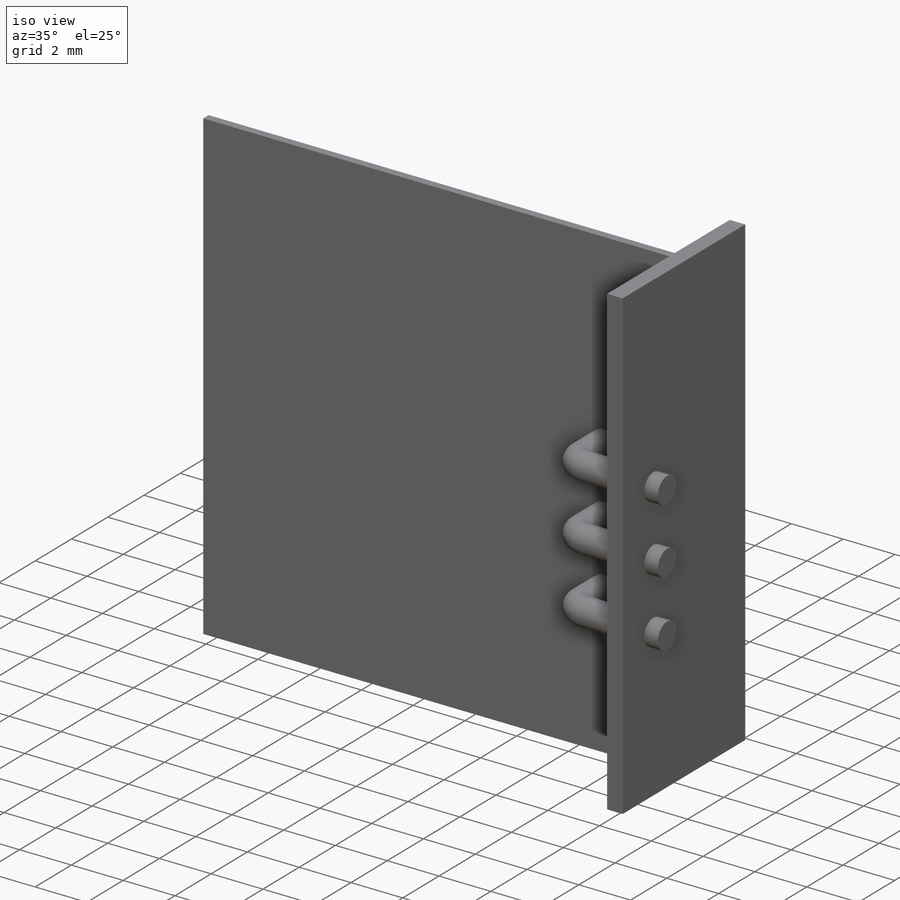
[diagram: iso view]
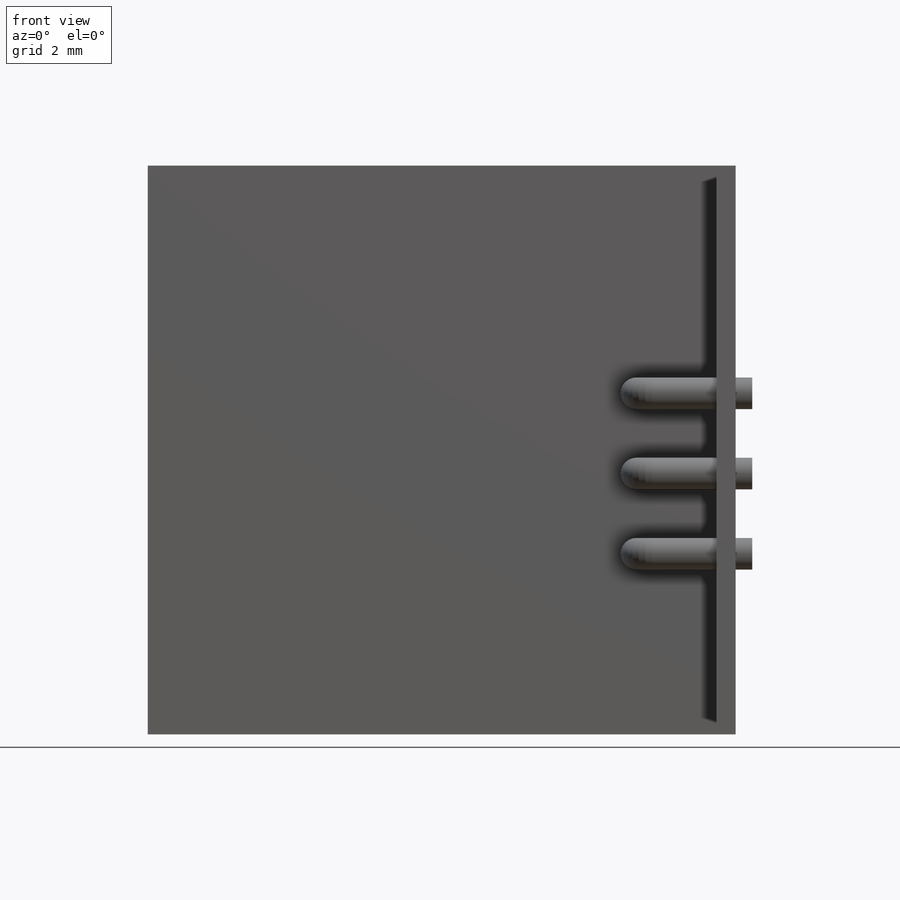
[diagram: front view]
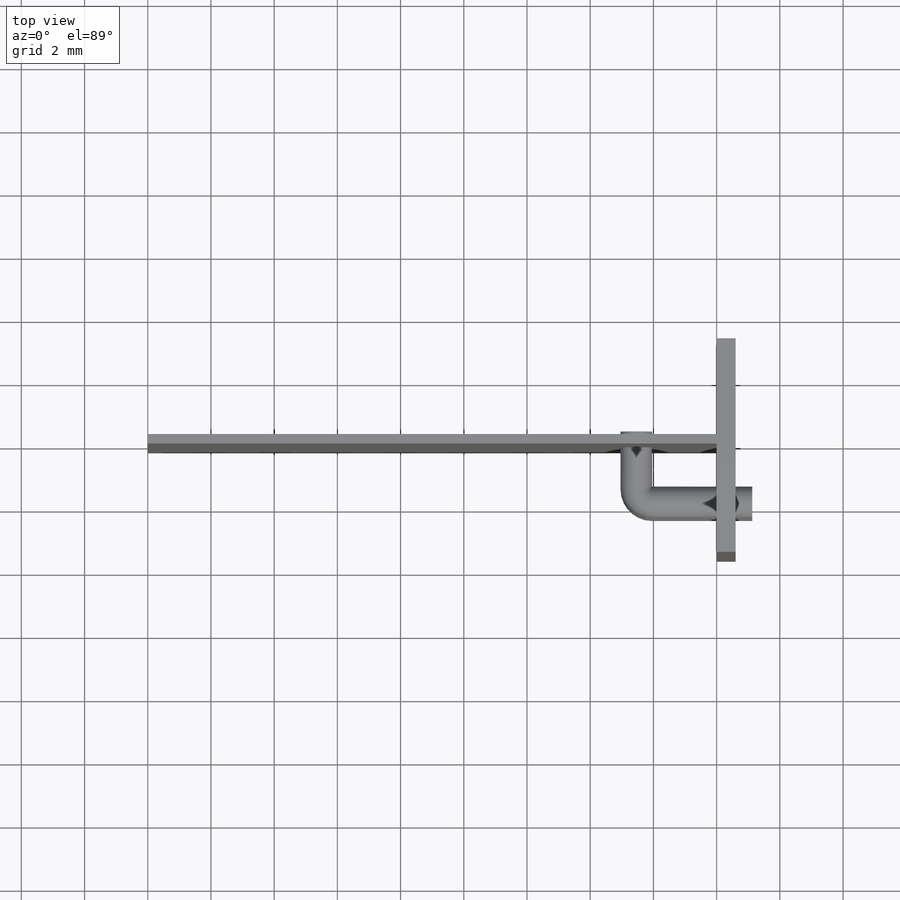
[diagram: top view]
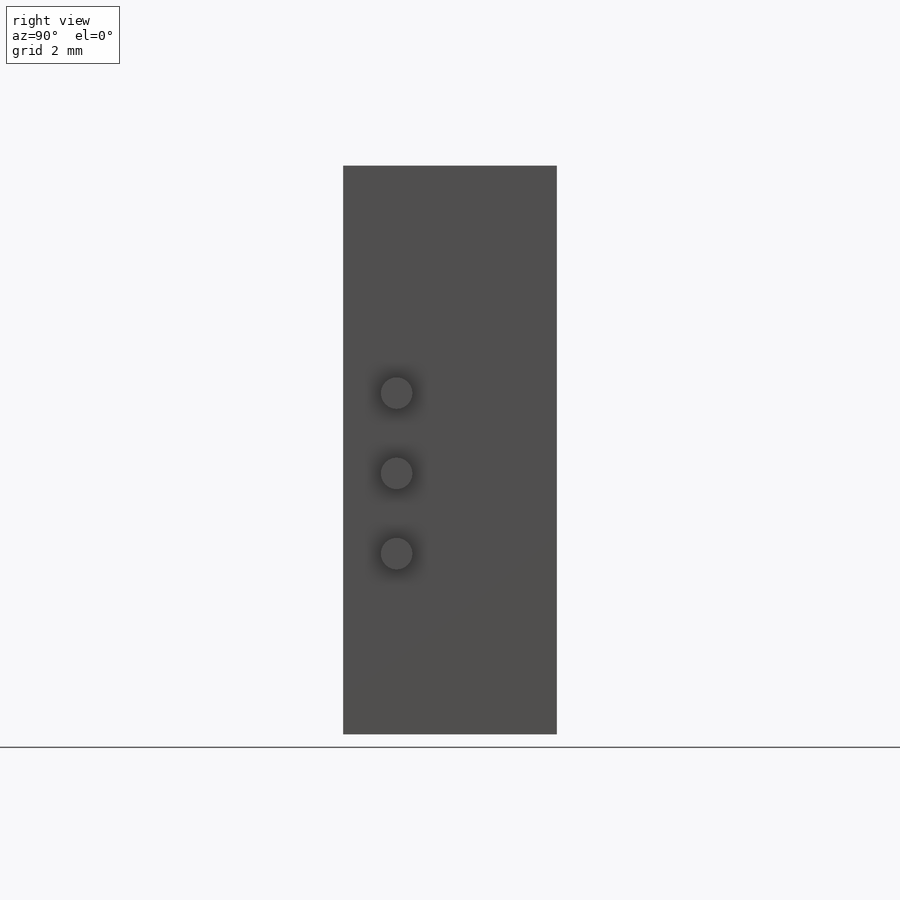
[diagram: right view]
SOLIDWORKS PART (.sldprt)
format: sldprt  version: not decoded by parser v0  size: 298,496 bytes
history: native  units: mm
features: sketch x5, extrude x3, material x1, plane x1, sweep x1, pattern_linear x1 (+15 scaffold rows collapsed)
feature tree (27):
  scaffold x15  (default folders/planes/origin — collapsed)
  material  "Material <not specified>"
  sketch  "Sketch1"  dims[D1=18.0mm D2=18.0mm]
  extrude  "Extrude1"  Depth=0.3mm
  sketch  "Sketch2"  dims[D3=1.0mm D1=2.54mm D2=5.715mm]
  plane  "Plane1"
  sketch  "Sketch3"  dims[D4=0.5mm D1=0.5mm D2=2.54mm D3=3.667mm]
  sweep  "Sweep1"
  extrude  "Extrude2"  [1 undecoded]
  sketch  "Sketch2<3>"  dims[D1=0.5mm]
  pattern_linear  "LPattern1"  Count1=3 Count2=1 Spacing1=2.54mm Spacing2=50mm
  sketch  "Sketch4"  dims[D1=1.6905mm D2=5.0715mm]
  extrude  "Extrude3"  Depth=0.6mm
decode coverage: 8 of 10 modeling features carry decoded parameters
note: 1 parameter value undecoded
note: suppression state not decoded; provenance and decode notes live in map.json
